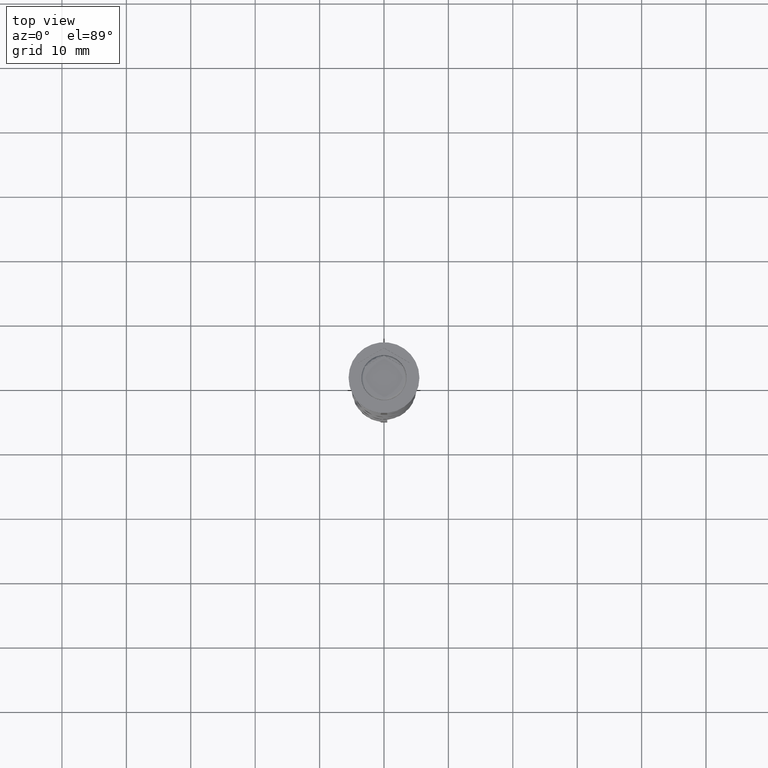
[diagram: clean part render]
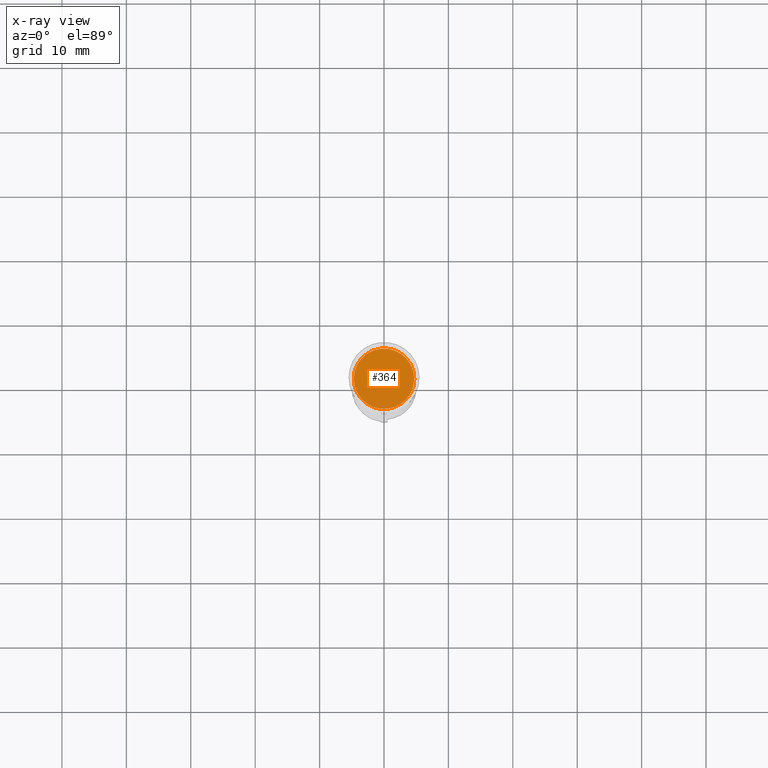
[diagram: x-ray — body ghosted, one internal face saturated and labeled with its STEP entity id]
A machine part, top view, then the same camera in x-ray: the body is ghosted and one INTERNAL B-rep face — a face not visible from any outside direction — is saturated and labeled: STEP entity #364.
In plain terms, the highlighted planar face has unit normal (0, 0, -1).
Its self-contained STEP definition (entity closure, byte-faithful):
#10 = DIRECTION ( 'NONE',  ( -0.000000000000000000, -0.000000000000000000, 1.000000000000000000 ) ) ;
#24 = DIRECTION ( 'NONE',  ( 0.000000000000000000, 0.000000000000000000, -1.000000000000000000 ) ) ;
#71 = CARTESIAN_POINT ( 'NONE',  ( -4.700000000000001066, 0.000000000000000000, -10.50000000000000178 ) ) ;
#76 = CIRCLE ( 'NONE', #2991, 4.700000000000001066 ) ;
#122 = ORIENTED_EDGE ( 'NONE', *, *, #1060, .T. ) ;
#144 = EDGE_LOOP ( 'NONE', ( #1779, #122 ) ) ;
#249 = CIRCLE ( 'NONE', #1377, 4.700000000000001066 ) ;
#364 = ADVANCED_FACE ( 'NONE', ( #569 ), #2577, .F. ) ;
#561 = CARTESIAN_POINT ( 'NONE',  ( 0.000000000000000000, 0.000000000000000000, -10.50000000000000178 ) ) ;
#569 = FACE_OUTER_BOUND ( 'NONE', #144, .T. ) ;
#767 = AXIS2_PLACEMENT_3D ( 'NONE', #2050, #24, #3198 ) ;
#891 = EDGE_CURVE ( 'NONE', #1005, #3003, #76, .T. ) ;
#1005 = VERTEX_POINT ( 'NONE', #71 ) ;
#1060 = EDGE_CURVE ( 'NONE', #3003, #1005, #249, .T. ) ;
#1377 = AXIS2_PLACEMENT_3D ( 'NONE', #561, #3128, #3476 ) ;
#1565 = CARTESIAN_POINT ( 'NONE',  ( 4.700000000000001066, 5.939536975864663955E-16, -10.50000000000000178 ) ) ;
#1779 = ORIENTED_EDGE ( 'NONE', *, *, #891, .T. ) ;
#2050 = CARTESIAN_POINT ( 'NONE',  ( 0.000000000000000000, 0.000000000000000000, -10.50000000000000178 ) ) ;
#2577 = PLANE ( 'NONE',  #767 ) ;
#2877 = CARTESIAN_POINT ( 'NONE',  ( 0.000000000000000000, 0.000000000000000000, -10.50000000000000178 ) ) ;
#2991 = AXIS2_PLACEMENT_3D ( 'NONE', #2877, #10, #3169 ) ;
#3003 = VERTEX_POINT ( 'NONE', #1565 ) ;
#3128 = DIRECTION ( 'NONE',  ( -0.000000000000000000, -0.000000000000000000, 1.000000000000000000 ) ) ;
#3169 = DIRECTION ( 'NONE',  ( -1.000000000000000000, 0.000000000000000000, 0.000000000000000000 ) ) ;
#3198 = DIRECTION ( 'NONE',  ( -1.000000000000000000, 0.000000000000000000, -0.000000000000000000 ) ) ;
#3476 = DIRECTION ( 'NONE',  ( -1.000000000000000000, 0.000000000000000000, 0.000000000000000000 ) ) ;